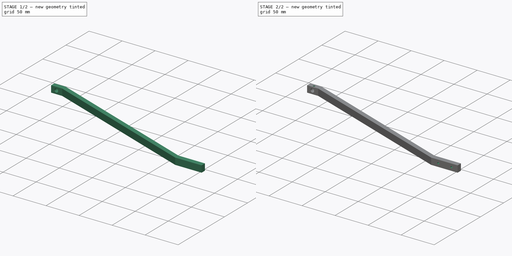
[diagram: build sequence overview — one tinted view per stage of 2, left to right]
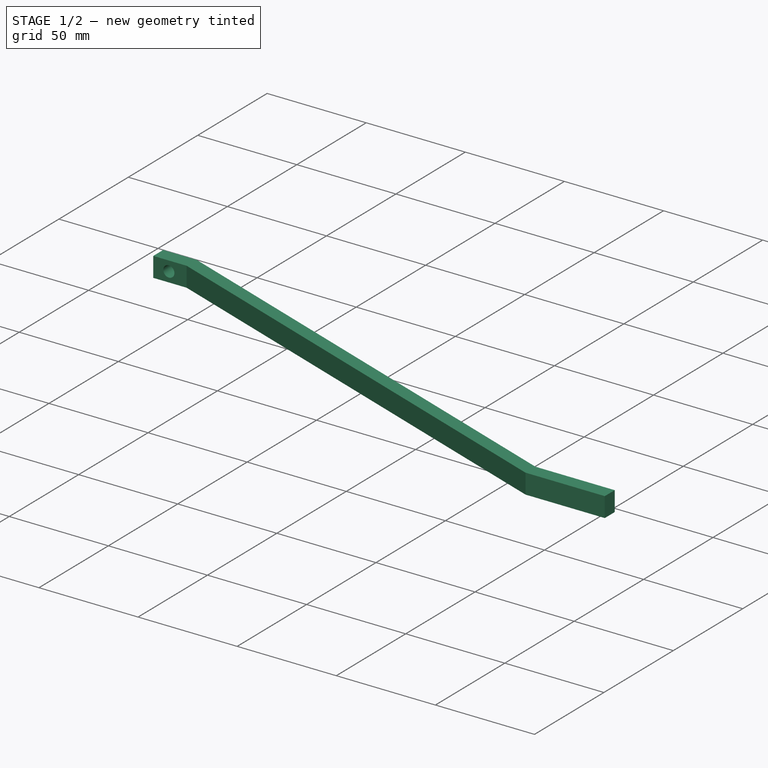
[diagram: stage 1 of 2 — iso view after this stage's code; geometry added in this stage tinted green]
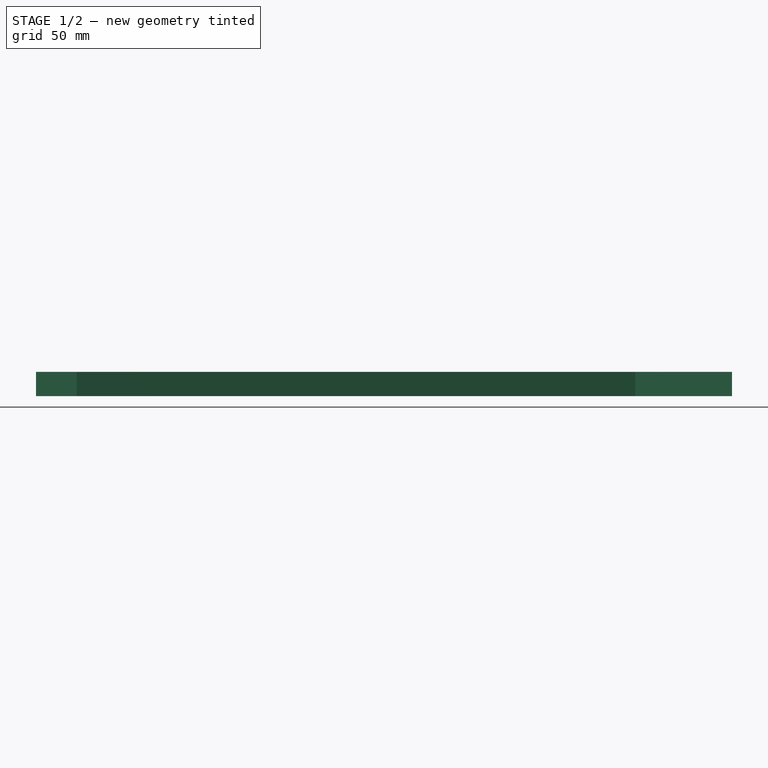
[diagram: stage 1 of 2 — front view after this stage's code; geometry added in this stage tinted green]
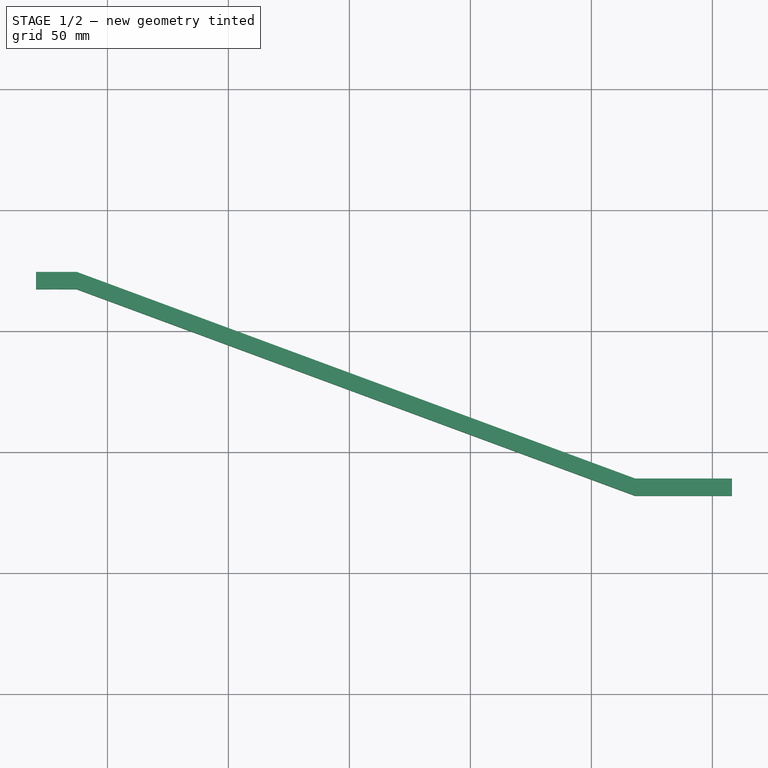
[diagram: stage 1 of 2 — top view after this stage's code; geometry added in this stage tinted green]
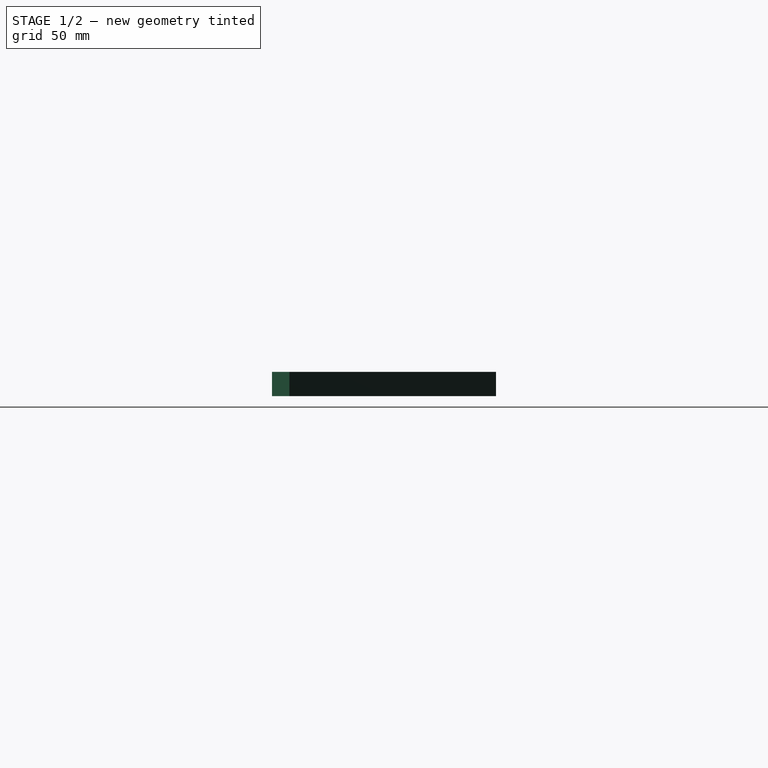
[diagram: stage 1 of 2 — right view after this stage's code; geometry added in this stage tinted green]
FCSTD DOCUMENT  (FreeCAD 0.16R6705 (Git))
Label: staffa
License: All rights reserved
LicenseURL: http://it.wikipedia.org/wiki/<copyright redacted>
objects: Sketcher::SketchObject×4, PartDesign::Pocket×3, PartDesign::Pad×1
note: 12 computed .brp shape members not serialized (recipe doc carries the construction recipe); baked Part::Feature solids carry a one-line shape summary decoded from their .brp

FEATURE [Sketcher::SketchObject] Sketch
  sketch-geometry (8):
    g0: LineSegment StartX=-79.4938 StartY=17.3201 StartZ=0 EndX=-62.6817 EndY=17.3201 EndZ=0
    g1: LineSegment StartX=-62.6817 StartY=17.3201 StartZ=0 EndX=168.096 EndY=-68.0748 EndZ=0
    g2: LineSegment StartX=168.096 StartY=-68.0748 StartZ=0 EndX=208.096 EndY=-68.0748 EndZ=0
    g3: LineSegment StartX=168.096 StartY=-60.9383 StartZ=0 EndX=-62.6817 EndY=24.4566 EndZ=0
    g4: LineSegment StartX=-62.6817 StartY=24.4566 StartZ=0 EndX=-79.4938 EndY=24.4566 EndZ=0
    g5: LineSegment StartX=-79.4938 StartY=24.4566 StartZ=0 EndX=-79.4938 EndY=17.3201 EndZ=0
    g6: LineSegment StartX=168.096 StartY=-60.9383 StartZ=0 EndX=208.096 EndY=-60.9383 EndZ=0
    g7: LineSegment StartX=208.096 StartY=-68.0748 StartZ=0 EndX=208.096 EndY=-60.9383 EndZ=0
  constraints (19):
    c: Coincident(g2,g1)
    c: Coincident(g1,g0)
    c: Distance(g0,g2) = 300
    c: Horizontal(g0)
    c: Horizontal(g2)
    c: DistanceX(g2,g2) = 40
    c: Parallel(g3,g1)
    c: DistanceX(g3,g1) = 0
    c: DistanceX(g3,g0) = 0
    c: Coincident(g0,g5)
    c: Coincident(g4,g5)
    c: Coincident(g3,g4)
    c: Parallel(g4,g0)
    c: Vertical(g5)
    c: Coincident(g3,g6)
    c: Coincident(g6,g7)
    c: Coincident(g2,g7)
    c: Parallel(g2,g6)
    c: Vertical(g7)
FEATURE [PartDesign::Pad] Pad
  Length = 10
  Length2 = 100
  Sketch = -> Sketch
  Type = 0
FEATURE [Sketcher::SketchObject] Sketch001
  Placement = pos=(0,17.3201,0) rot=(1,0,0;1.5708rad)
  Support = -> Pad [Face4]
  sketch-geometry (1):
    g0: Circle CenterX=-71.636 CenterY=5 CenterZ=0 NormalX=0 NormalY=0 NormalZ=1 Radius=2.8
  constraints (2):
    c: Radius(g0) = 2.8
    c: DistanceY(g-1,g0) = 5
FEATURE [PartDesign::Pocket] Pocket
  Length = 7
  Sketch = -> Sketch001
  Type = 0
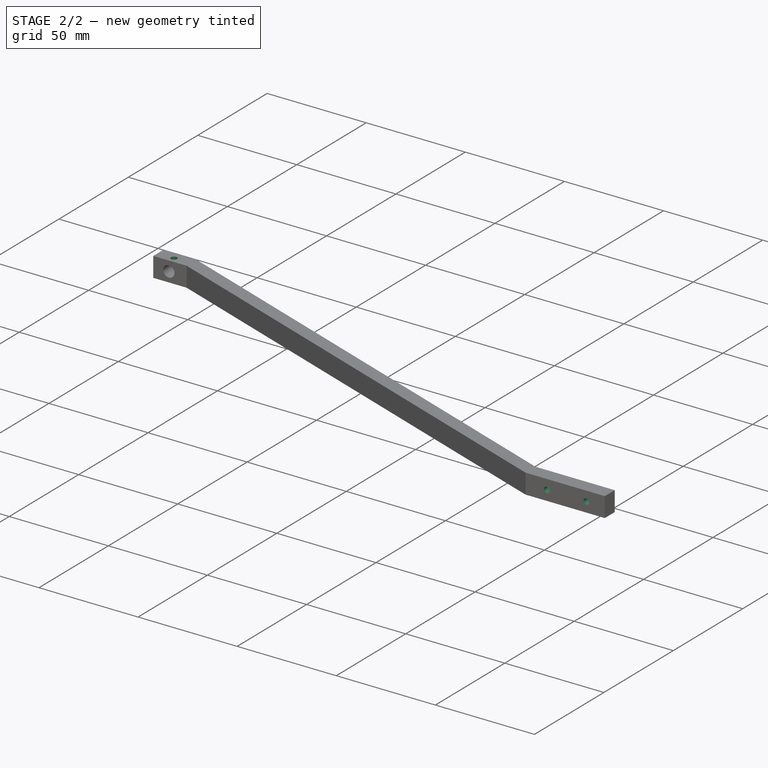
[diagram: stage 2 of 2 — iso view after this stage's code; geometry added in this stage tinted green]
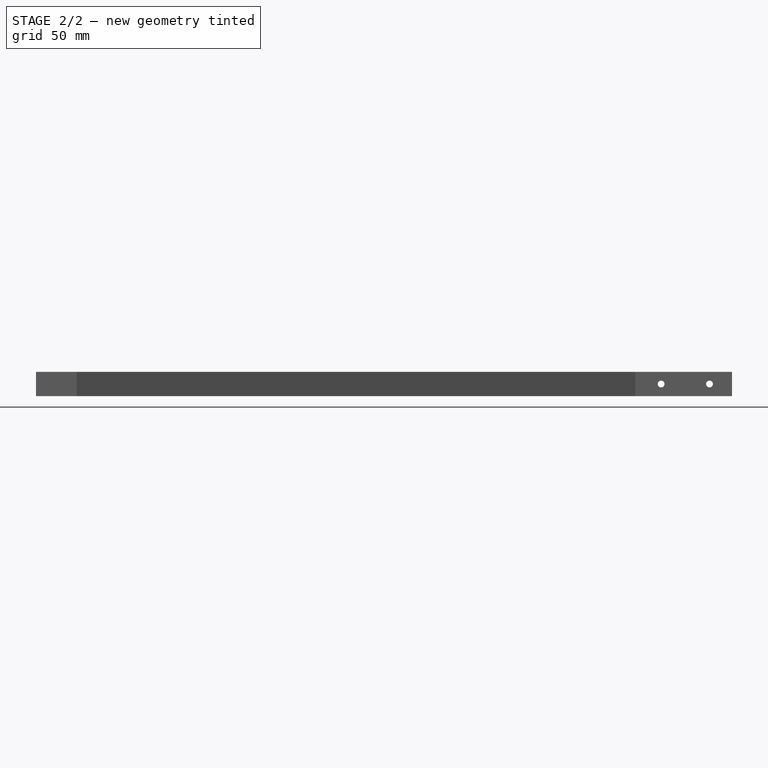
[diagram: stage 2 of 2 — front view after this stage's code; geometry added in this stage tinted green]
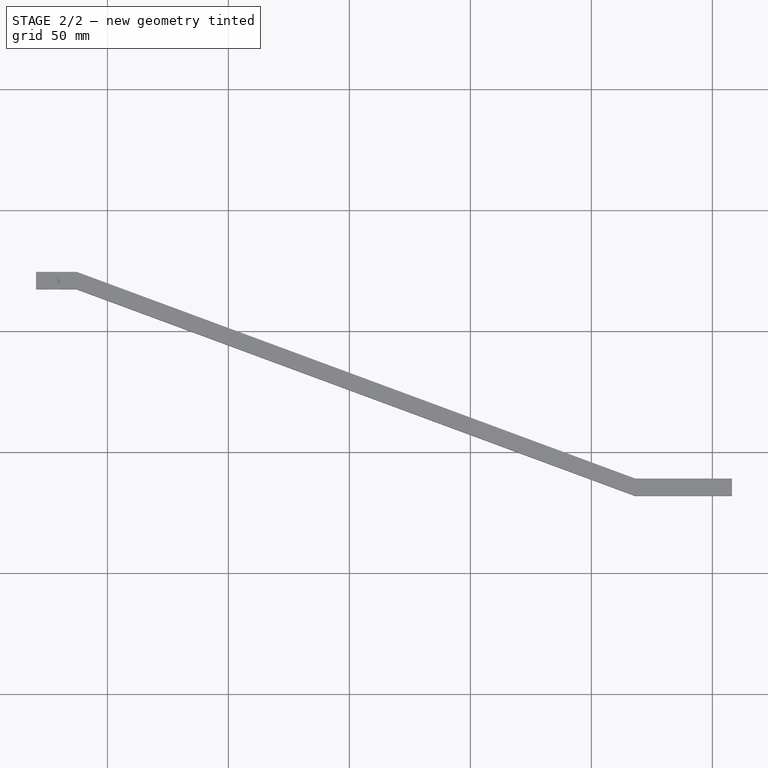
[diagram: stage 2 of 2 — top view after this stage's code; geometry added in this stage tinted green]
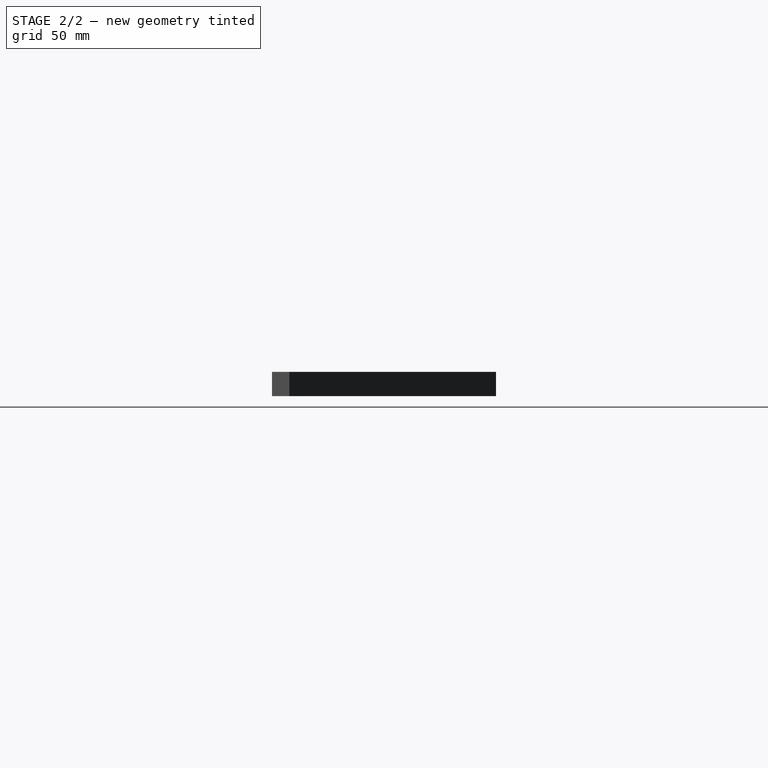
[diagram: stage 2 of 2 — right view after this stage's code; geometry added in this stage tinted green]
FEATURE [Sketcher::SketchObject] Sketch002
  ExternalGeometry = -> [Pocket]
  Placement = pos=(0,0,10) rot=(0,0,1;0rad)
  Support = -> Pocket [Face5]
  sketch-geometry (1):
    g0: Circle CenterX=-71.236 CenterY=20.4483 CenterZ=0 NormalX=0 NormalY=0 NormalZ=1 Radius=1.5
  constraints (2):
    c: Radius(g0) = 1.5
    c: DistanceX(g0,g-3) = 2.4
FEATURE [PartDesign::Pocket] Pocket001
  Length = 5
  Sketch = -> Sketch002
  Type = 2
FEATURE [Sketcher::SketchObject] Sketch003
  Placement = pos=(0,-68.0748,0) rot=(1,0,0;1.5708rad)
  Support = -> Pocket001 [Face8]
  sketch-geometry (3):
    g0: Circle CenterX=178.821 CenterY=5 CenterZ=0 NormalX=0 NormalY=0 NormalZ=1 Radius=1.4
    g1: Circle CenterX=198.821 CenterY=5 CenterZ=0 NormalX=0 NormalY=0 NormalZ=1 Radius=1.4
    g2: LineSegment [constr] StartX=222.916 StartY=5 StartZ=0 EndX=171.23 EndY=5 EndZ=0
  constraints (6):
    c: Radius(g0) = 1.4
    c: Equal(g1,g0)
    c: Horizontal(g2)
    c: DistanceY(g-1,g2) = 5
    c: PointOnObject(g1,g2)
    c: PointOnObject(g0,g2)
FEATURE [PartDesign::Pocket] Pocket002
  Length = 5
  Sketch = -> Sketch003
  Type = 1
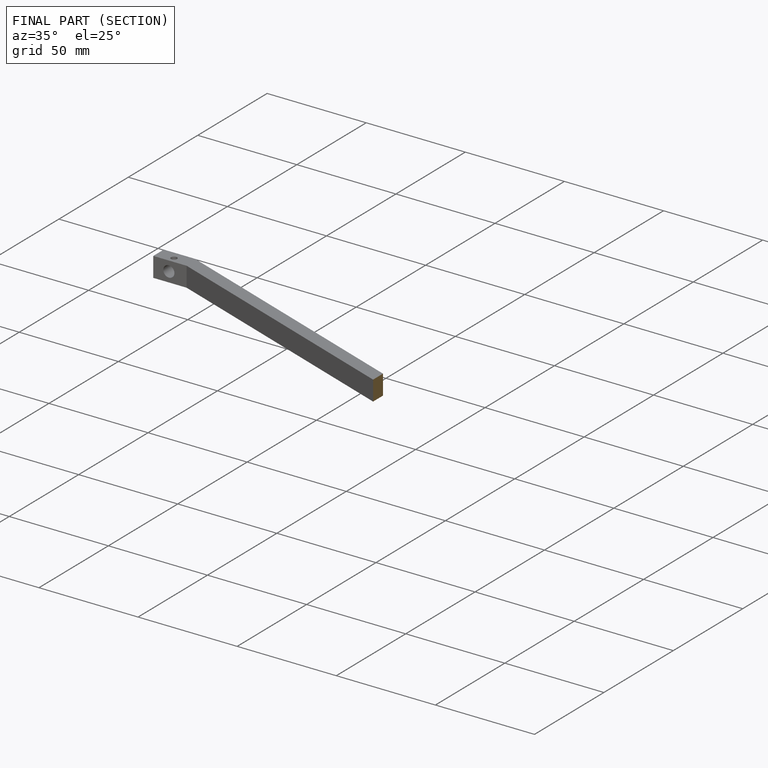
[diagram: finished part — half-section view (interior)]
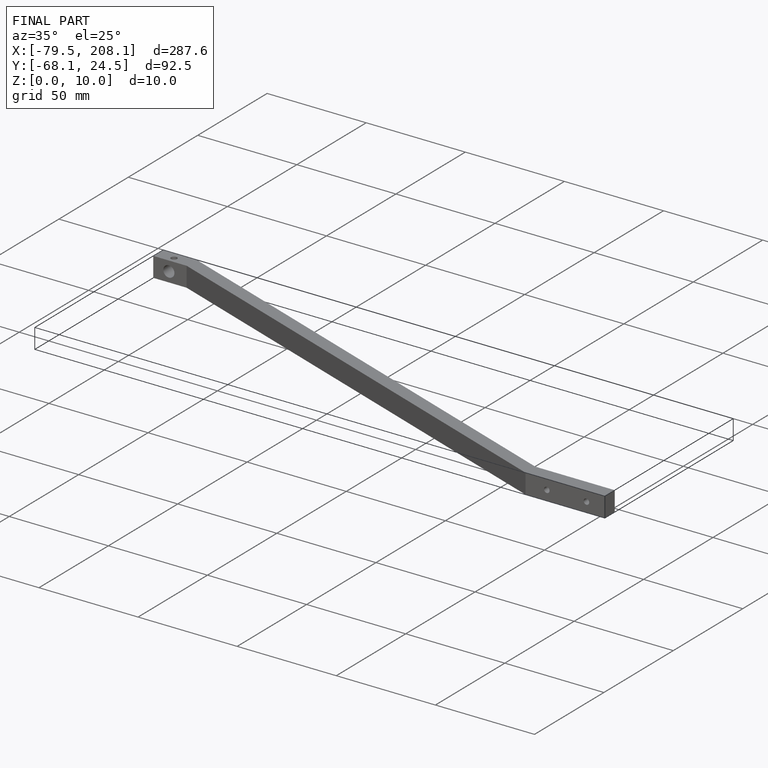
[diagram: finished part — iso view with bounding-box wireframe]
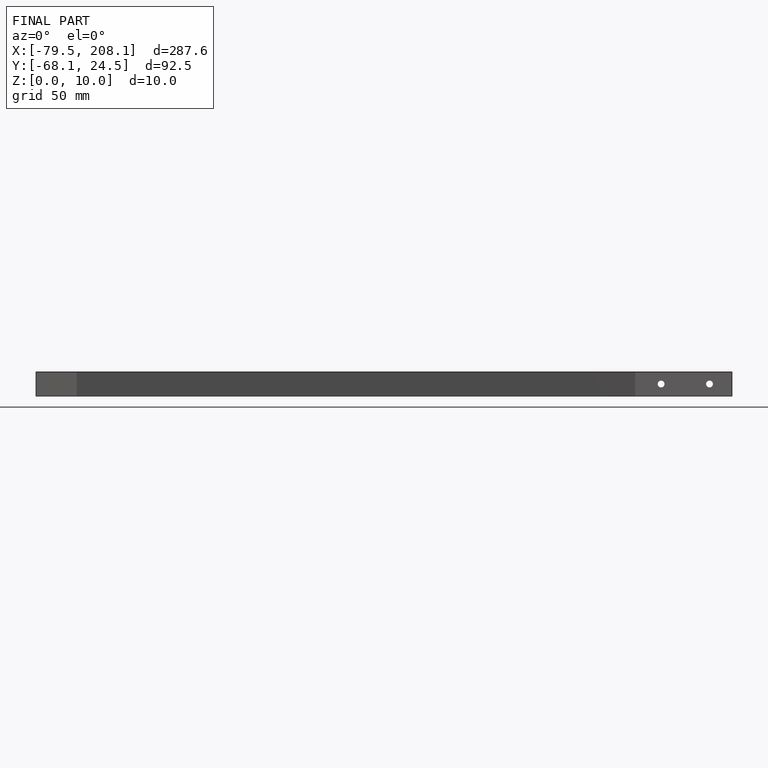
[diagram: finished part — front view with bounding-box wireframe]
